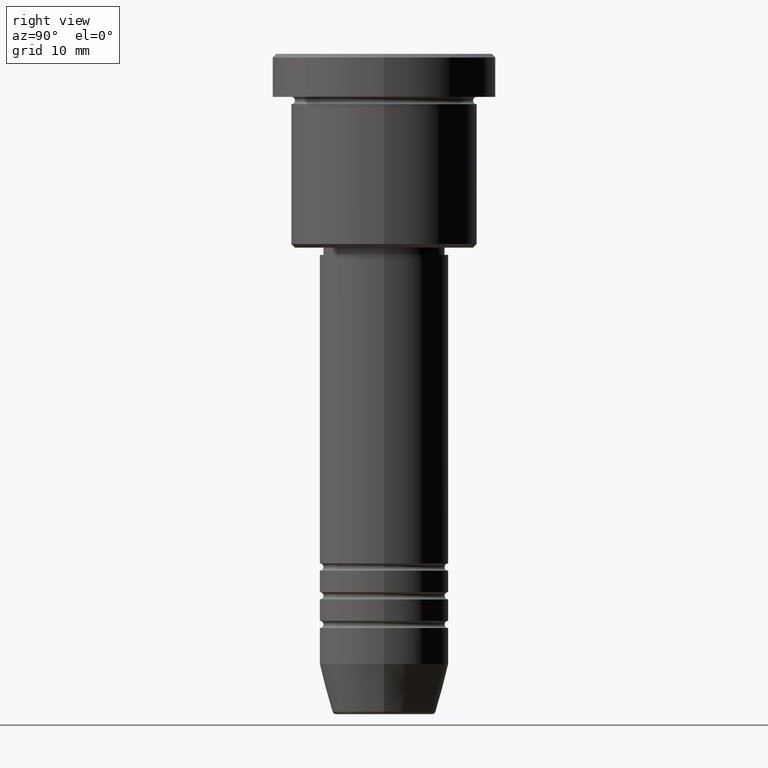
[diagram: clean part render]
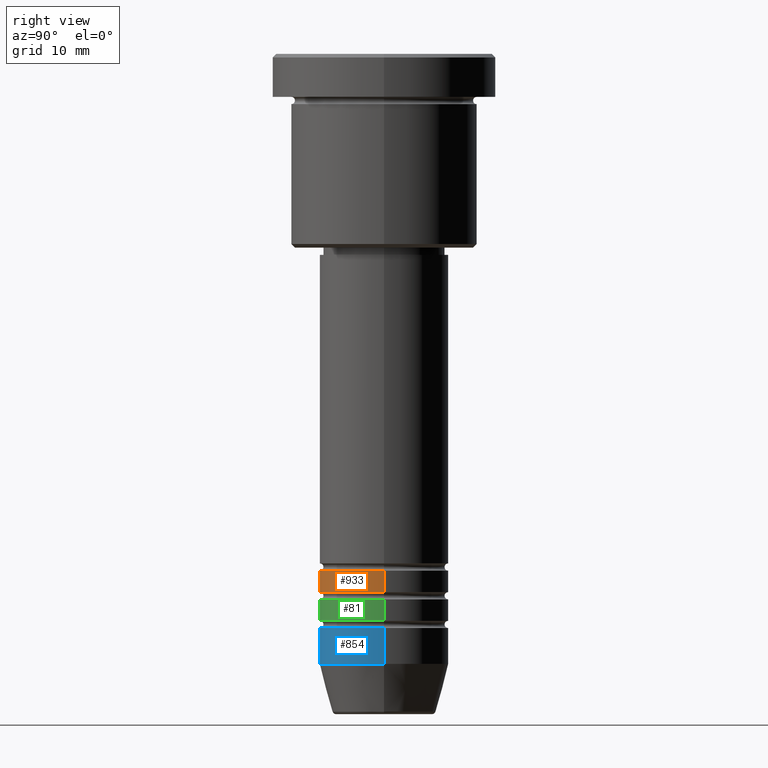
[diagram: same view with three faces highlighted in distinct colors, each labeled with its STEP entity id]
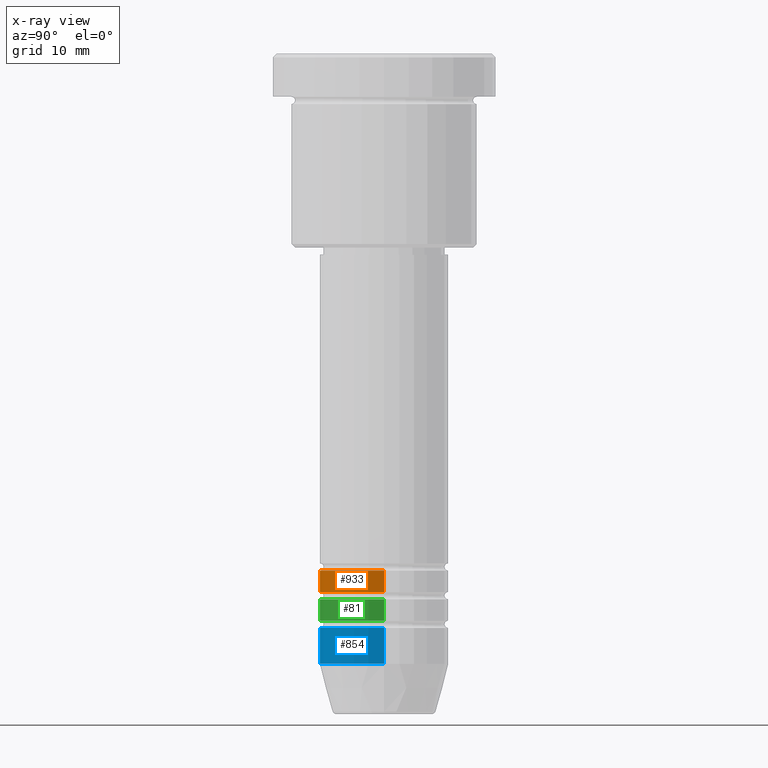
[diagram: x-ray of the same camera — body ghosted, the three highlighted faces saturated]
A machine part, right view with three faces highlighted in distinct colors.
The next image is the same camera in x-ray (body ghosted, the three faces saturated) — at least one of them is partly hidden behind the body in this view.
Their STEP definitions:

[orange] entity #933 — the highlighted cylindrical surface (partial cylindrical patch) has radius 9 mm, axis along (-0, -0, 1).
#68 = CIRCLE ( 'NONE', #315, 9.000000000000000000 ) ;
#75 = DIRECTION ( 'NONE',  ( 1.000000000000000000, 0.000000000000000000, 0.000000000000000000 ) ) ;
#119 = CARTESIAN_POINT ( 'NONE',  ( 0.000000000000000000, 0.000000000000000000, -71.99999999999990052 ) ) ;
#194 = DIRECTION ( 'NONE',  ( -0.000000000000000000, -0.000000000000000000, 1.000000000000000000 ) ) ;
#219 = DIRECTION ( 'NONE',  ( 1.000000000000000000, 0.000000000000000000, 0.000000000000000000 ) ) ;
#233 = DIRECTION ( 'NONE',  ( -0.000000000000000000, -0.000000000000000000, 1.000000000000000000 ) ) ;
#282 = CYLINDRICAL_SURFACE ( 'NONE', #1048, 9.000000000000001776 ) ;
#285 = DIRECTION ( 'NONE',  ( -0.000000000000000000, -0.000000000000000000, 1.000000000000000000 ) ) ;
#315 = AXIS2_PLACEMENT_3D ( 'NONE', #119, #1043, #219 ) ;
#323 = VERTEX_POINT ( 'NONE', #893 ) ;
#379 = CARTESIAN_POINT ( 'NONE',  ( 9.000000000000001776, 0.000000000000000000, -74.99999999999991473 ) ) ;
#411 = EDGE_LOOP ( 'NONE', ( #703, #895, #590, #811 ) ) ;
#465 = DIRECTION ( 'NONE',  ( 1.000000000000000000, 0.000000000000000000, 0.000000000000000000 ) ) ;
#507 = CARTESIAN_POINT ( 'NONE',  ( -9.000000000000001776, 1.102182119232617911E-15, -74.99999999999991473 ) ) ;
#520 = CARTESIAN_POINT ( 'NONE',  ( 0.000000000000000000, 0.000000000000000000, -74.99999999999991473 ) ) ;
#528 = DIRECTION ( 'NONE',  ( -0.000000000000000000, -0.000000000000000000, 1.000000000000000000 ) ) ;
#564 = VERTEX_POINT ( 'NONE', #921 ) ;
#567 = FACE_OUTER_BOUND ( 'NONE', #411, .T. ) ;
#590 = ORIENTED_EDGE ( 'NONE', *, *, #848, .T. ) ;
#604 = AXIS2_PLACEMENT_3D ( 'NONE', #520, #528, #75 ) ;
#650 = CARTESIAN_POINT ( 'NONE',  ( 9.000000000000001776, 0.000000000000000000, 0.000000000000000000 ) ) ;
#690 = LINE ( 'NONE', #1126, #975 ) ;
#703 = ORIENTED_EDGE ( 'NONE', *, *, #1056, .F. ) ;
#724 = CIRCLE ( 'NONE', #604, 9.000000000000001776 ) ;
#785 = EDGE_CURVE ( 'NONE', #564, #323, #68, .T. ) ;
#810 = VERTEX_POINT ( 'NONE', #507 ) ;
#811 = ORIENTED_EDGE ( 'NONE', *, *, #785, .F. ) ;
#848 = EDGE_CURVE ( 'NONE', #899, #323, #926, .T. ) ;
#893 = CARTESIAN_POINT ( 'NONE',  ( 9.000000000000000000, 0.000000000000000000, -71.99999999999990052 ) ) ;
#895 = ORIENTED_EDGE ( 'NONE', *, *, #1136, .T. ) ;
#899 = VERTEX_POINT ( 'NONE', #379 ) ;
#915 = VECTOR ( 'NONE', #285, 1000.000000000000000 ) ;
#921 = CARTESIAN_POINT ( 'NONE',  ( -9.000000000000000000, 1.102182119232617714E-15, -71.99999999999990052 ) ) ;
#926 = LINE ( 'NONE', #650, #915 ) ;
#933 = ADVANCED_FACE ( 'NONE', ( #567 ), #282, .T. ) ;
#975 = VECTOR ( 'NONE', #233, 1000.000000000000000 ) ;
#1021 = CARTESIAN_POINT ( 'NONE',  ( 0.000000000000000000, 0.000000000000000000, 0.000000000000000000 ) ) ;
#1043 = DIRECTION ( 'NONE',  ( -0.000000000000000000, -0.000000000000000000, 1.000000000000000000 ) ) ;
#1048 = AXIS2_PLACEMENT_3D ( 'NONE', #1021, #194, #465 ) ;
#1056 = EDGE_CURVE ( 'NONE', #810, #564, #690, .T. ) ;
#1126 = CARTESIAN_POINT ( 'NONE',  ( -9.000000000000001776, 1.102182119232617911E-15, 0.000000000000000000 ) ) ;
#1136 = EDGE_CURVE ( 'NONE', #810, #899, #724, .T. ) ;

[blue] entity #854 — the highlighted cylindrical surface (partial cylindrical patch) has radius 9 mm, axis along (-0, -0, 1).
#96 = CARTESIAN_POINT ( 'NONE',  ( 0.000000000000000000, 0.000000000000000000, 0.000000000000000000 ) ) ;
#118 = DIRECTION ( 'NONE',  ( 1.000000000000000000, 0.000000000000000000, 0.000000000000000000 ) ) ;
#123 = DIRECTION ( 'NONE',  ( -0.000000000000000000, -0.000000000000000000, 1.000000000000000000 ) ) ;
#154 = VERTEX_POINT ( 'NONE', #1049 ) ;
#175 = ORIENTED_EDGE ( 'NONE', *, *, #756, .F. ) ;
#184 = AXIS2_PLACEMENT_3D ( 'NONE', #96, #754, #741 ) ;
#185 = ORIENTED_EDGE ( 'NONE', *, *, #945, .F. ) ;
#237 = CARTESIAN_POINT ( 'NONE',  ( 9.000000000000000000, 0.000000000000000000, 0.000000000000000000 ) ) ;
#244 = AXIS2_PLACEMENT_3D ( 'NONE', #305, #321, #118 ) ;
#305 = CARTESIAN_POINT ( 'NONE',  ( 0.000000000000000000, 0.000000000000000000, -85.00000000000000000 ) ) ;
#321 = DIRECTION ( 'NONE',  ( -0.000000000000000000, -0.000000000000000000, 1.000000000000000000 ) ) ;
#436 = ORIENTED_EDGE ( 'NONE', *, *, #819, .T. ) ;
#474 = CARTESIAN_POINT ( 'NONE',  ( -9.000000000000000000, 1.102182119232617714E-15, 0.000000000000000000 ) ) ;
#539 = VERTEX_POINT ( 'NONE', #732 ) ;
#559 = CYLINDRICAL_SURFACE ( 'NONE', #184, 9.000000000000000000 ) ;
#595 = DIRECTION ( 'NONE',  ( 1.000000000000000000, 0.000000000000000000, 0.000000000000000000 ) ) ;
#601 = DIRECTION ( 'NONE',  ( -0.000000000000000000, -0.000000000000000000, 1.000000000000000000 ) ) ;
#610 = ORIENTED_EDGE ( 'NONE', *, *, #1179, .T. ) ;
#640 = FACE_OUTER_BOUND ( 'NONE', #1085, .T. ) ;
#663 = VECTOR ( 'NONE', #1114, 1000.000000000000000 ) ;
#704 = CIRCLE ( 'NONE', #1181, 9.000000000000000000 ) ;
#732 = CARTESIAN_POINT ( 'NONE',  ( 9.000000000000000000, 0.000000000000000000, -80.00000000000001421 ) ) ;
#741 = DIRECTION ( 'NONE',  ( 1.000000000000000000, 0.000000000000000000, 0.000000000000000000 ) ) ;
#749 = LINE ( 'NONE', #474, #663 ) ;
#754 = DIRECTION ( 'NONE',  ( -0.000000000000000000, -0.000000000000000000, 1.000000000000000000 ) ) ;
#756 = EDGE_CURVE ( 'NONE', #154, #539, #704, .T. ) ;
#802 = CIRCLE ( 'NONE', #244, 9.000000000000000000 ) ;
#819 = EDGE_CURVE ( 'NONE', #902, #539, #1065, .T. ) ;
#854 = ADVANCED_FACE ( 'NONE', ( #640 ), #559, .T. ) ;
#868 = CARTESIAN_POINT ( 'NONE',  ( 0.000000000000000000, 0.000000000000000000, -80.00000000000001421 ) ) ;
#902 = VERTEX_POINT ( 'NONE', #935 ) ;
#935 = CARTESIAN_POINT ( 'NONE',  ( 9.000000000000000000, 0.000000000000000000, -85.00000000000000000 ) ) ;
#945 = EDGE_CURVE ( 'NONE', #989, #154, #749, .T. ) ;
#947 = CARTESIAN_POINT ( 'NONE',  ( -9.000000000000000000, 1.102182119232617714E-15, -85.00000000000000000 ) ) ;
#974 = VECTOR ( 'NONE', #601, 1000.000000000000000 ) ;
#989 = VERTEX_POINT ( 'NONE', #947 ) ;
#1049 = CARTESIAN_POINT ( 'NONE',  ( -9.000000000000000000, 1.102182119232617714E-15, -80.00000000000001421 ) ) ;
#1065 = LINE ( 'NONE', #237, #974 ) ;
#1085 = EDGE_LOOP ( 'NONE', ( #185, #610, #436, #175 ) ) ;
#1114 = DIRECTION ( 'NONE',  ( -0.000000000000000000, -0.000000000000000000, 1.000000000000000000 ) ) ;
#1179 = EDGE_CURVE ( 'NONE', #989, #902, #802, .T. ) ;
#1181 = AXIS2_PLACEMENT_3D ( 'NONE', #868, #123, #595 ) ;

[green] entity #81 — the highlighted cylindrical surface (partial cylindrical patch) has radius 9 mm, axis along (-0, -0, 1).
#1 = VECTOR ( 'NONE', #276, 1000.000000000000000 ) ;
#6 = DIRECTION ( 'NONE',  ( -0.000000000000000000, -0.000000000000000000, 1.000000000000000000 ) ) ;
#17 = CYLINDRICAL_SURFACE ( 'NONE', #857, 9.000000000000001776 ) ;
#27 = VERTEX_POINT ( 'NONE', #851 ) ;
#76 = ORIENTED_EDGE ( 'NONE', *, *, #644, .T. ) ;
#81 = ADVANCED_FACE ( 'NONE', ( #658 ), #17, .T. ) ;
#107 = DIRECTION ( 'NONE',  ( -0.000000000000000000, -0.000000000000000000, 1.000000000000000000 ) ) ;
#111 = CARTESIAN_POINT ( 'NONE',  ( 0.000000000000000000, 0.000000000000000000, 0.000000000000000000 ) ) ;
#198 = CARTESIAN_POINT ( 'NONE',  ( 0.000000000000000000, 0.000000000000000000, -78.99999999999988631 ) ) ;
#201 = ORIENTED_EDGE ( 'NONE', *, *, #909, .F. ) ;
#212 = DIRECTION ( 'NONE',  ( 1.000000000000000000, 0.000000000000000000, 0.000000000000000000 ) ) ;
#243 = AXIS2_PLACEMENT_3D ( 'NONE', #198, #107, #846 ) ;
#276 = DIRECTION ( 'NONE',  ( -0.000000000000000000, -0.000000000000000000, 1.000000000000000000 ) ) ;
#322 = CARTESIAN_POINT ( 'NONE',  ( 9.000000000000000000, 0.000000000000000000, -75.99999999999990052 ) ) ;
#359 = VERTEX_POINT ( 'NONE', #362 ) ;
#362 = CARTESIAN_POINT ( 'NONE',  ( -9.000000000000001776, 1.102182119232617911E-15, -78.99999999999988631 ) ) ;
#402 = DIRECTION ( 'NONE',  ( -0.000000000000000000, -0.000000000000000000, 1.000000000000000000 ) ) ;
#409 = LINE ( 'NONE', #769, #662 ) ;
#476 = DIRECTION ( 'NONE',  ( -0.000000000000000000, -0.000000000000000000, 1.000000000000000000 ) ) ;
#498 = CARTESIAN_POINT ( 'NONE',  ( 9.000000000000001776, 0.000000000000000000, -78.99999999999988631 ) ) ;
#502 = EDGE_CURVE ( 'NONE', #27, #806, #1180, .T. ) ;
#523 = ORIENTED_EDGE ( 'NONE', *, *, #502, .F. ) ;
#549 = DIRECTION ( 'NONE',  ( 1.000000000000000000, 0.000000000000000000, 0.000000000000000000 ) ) ;
#631 = EDGE_LOOP ( 'NONE', ( #201, #76, #883, #523 ) ) ;
#644 = EDGE_CURVE ( 'NONE', #359, #693, #1033, .T. ) ;
#658 = FACE_OUTER_BOUND ( 'NONE', #631, .T. ) ;
#662 = VECTOR ( 'NONE', #402, 1000.000000000000000 ) ;
#667 = EDGE_CURVE ( 'NONE', #693, #806, #409, .T. ) ;
#693 = VERTEX_POINT ( 'NONE', #498 ) ;
#769 = CARTESIAN_POINT ( 'NONE',  ( 9.000000000000001776, 0.000000000000000000, 0.000000000000000000 ) ) ;
#806 = VERTEX_POINT ( 'NONE', #322 ) ;
#824 = CARTESIAN_POINT ( 'NONE',  ( 0.000000000000000000, 0.000000000000000000, -75.99999999999990052 ) ) ;
#825 = CARTESIAN_POINT ( 'NONE',  ( -9.000000000000001776, 1.102182119232617911E-15, 0.000000000000000000 ) ) ;
#846 = DIRECTION ( 'NONE',  ( 1.000000000000000000, 0.000000000000000000, 0.000000000000000000 ) ) ;
#851 = CARTESIAN_POINT ( 'NONE',  ( -9.000000000000000000, 1.102182119232617714E-15, -75.99999999999990052 ) ) ;
#857 = AXIS2_PLACEMENT_3D ( 'NONE', #111, #476, #212 ) ;
#883 = ORIENTED_EDGE ( 'NONE', *, *, #667, .T. ) ;
#909 = EDGE_CURVE ( 'NONE', #359, #27, #917, .T. ) ;
#917 = LINE ( 'NONE', #825, #1 ) ;
#1033 = CIRCLE ( 'NONE', #243, 9.000000000000001776 ) ;
#1125 = AXIS2_PLACEMENT_3D ( 'NONE', #824, #6, #549 ) ;
#1180 = CIRCLE ( 'NONE', #1125, 9.000000000000000000 ) ;